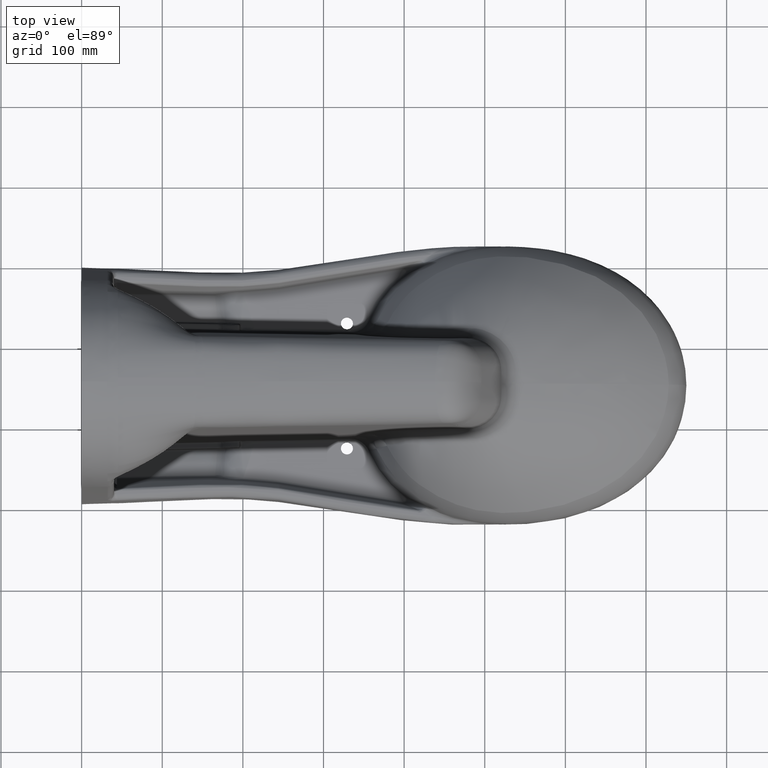
[diagram: clean part render]
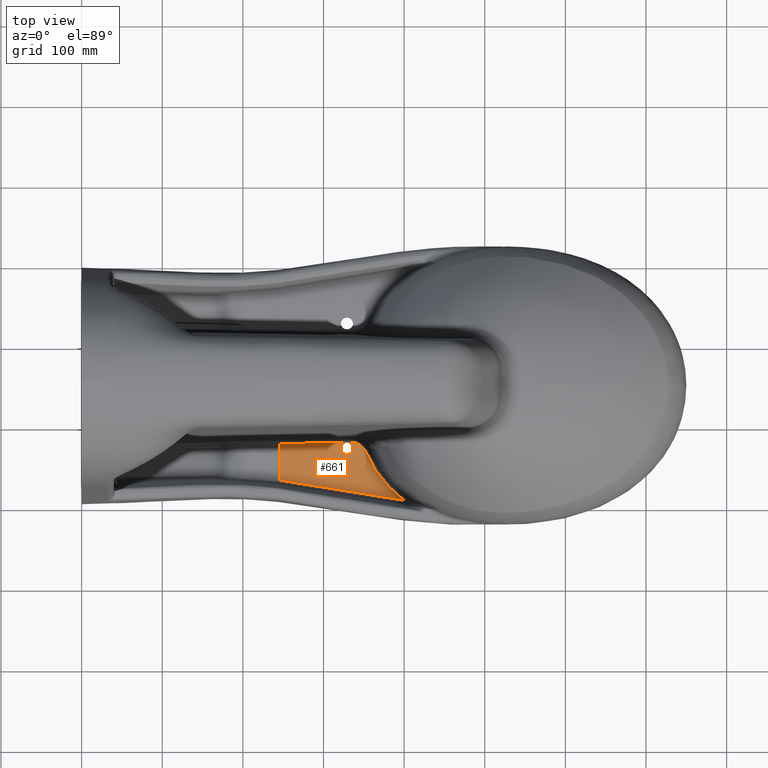
[diagram: same view with one face highlighted and labeled with its STEP entity id]
A machine part, top view. The second image highlights one B-rep face of the part: STEP entity #661.
In plain terms, the highlighted planar face has unit normal (0, 0, -1).
Its self-contained STEP definition (entity closure, byte-faithful):
#66=CIRCLE('',#6532,7.5);
#591=PLANE('',#6533);
#661=ADVANCED_FACE('',(#1244),#591,.F.);
#1244=FACE_OUTER_BOUND('',#1667,.T.);
#1667=EDGE_LOOP('',(#2306,#2307,#2308,#2309,#2310,#2311,#2312));
#2306=ORIENTED_EDGE('',*,*,#4903,.F.);
#2307=ORIENTED_EDGE('',*,*,#4902,.T.);
#2308=ORIENTED_EDGE('',*,*,#4904,.F.);
#2309=ORIENTED_EDGE('',*,*,#4905,.T.);
#2310=ORIENTED_EDGE('',*,*,#4906,.T.);
#2311=ORIENTED_EDGE('',*,*,#4907,.T.);
#2312=ORIENTED_EDGE('',*,*,#4898,.T.);
#4253=VERTEX_POINT('',#9554);
#4254=VERTEX_POINT('',#9555);
#4255=VERTEX_POINT('',#9560);
#4258=VERTEX_POINT('',#9578);
#4259=VERTEX_POINT('',#9600);
#4260=VERTEX_POINT('',#9674);
#4261=VERTEX_POINT('',#9685);
#4898=EDGE_CURVE('',#4255,#4253,#5903,.T.);
#4902=EDGE_CURVE('',#4254,#4258,#5906,.T.);
#4903=EDGE_CURVE('',#4254,#4253,#66,.T.);
#4904=EDGE_CURVE('',#4259,#4258,#5907,.T.);
#4905=EDGE_CURVE('',#4259,#4260,#5908,.T.);
#4906=EDGE_CURVE('',#4260,#4261,#5909,.T.);
#4907=EDGE_CURVE('',#4261,#4255,#5910,.T.);
#5903=B_SPLINE_CURVE_WITH_KNOTS('',3,(#9556,#9557,#9558,#9559),
 .UNSPECIFIED.,.F.,.F.,(4,4),(0.,1.),.UNSPECIFIED.);
#5906=B_SPLINE_CURVE_WITH_KNOTS('',3,(#9579,#9580,#9581,#9582),
 .UNSPECIFIED.,.F.,.F.,(4,4),(0.,1.),.UNSPECIFIED.);
#5907=B_SPLINE_CURVE_WITH_KNOTS('',3,(#9596,#9597,#9598,#9599),
 .UNSPECIFIED.,.F.,.F.,(4,4),(0.,1.),.UNSPECIFIED.);
#5908=B_SPLINE_CURVE_WITH_KNOTS('',3,(#9601,#9602,#9603,#9604,#9605,#9606,
#9607,#9608,#9609,#9610,#9611,#9612,#9613,#9614,#9615,#9616,#9617,#9618,
#9619,#9620,#9621,#9622,#9623,#9624,#9625,#9626,#9627,#9628,#9629,#9630,
#9631,#9632,#9633,#9634,#9635,#9636,#9637,#9638,#9639,#9640,#9641,#9642,
#9643,#9644,#9645,#9646,#9647,#9648,#9649,#9650,#9651,#9652,#9653,#9654,
#9655,#9656,#9657,#9658,#9659,#9660,#9661,#9662,#9663,#9664,#9665,#9666,
#9667,#9668,#9669,#9670,#9671,#9672,#9673),.UNSPECIFIED.,.F.,.F.,(4,1,1,
1,2,2,1,1,1,1,2,2,1,1,1,2,2,1,1,1,1,1,2,2,1,1,1,1,2,2,1,1,1,1,2,2,1,1,1,
2,2,1,1,1,1,2,2,1,1,1,2,2,4),(0.,0.0625000000000513,0.0937500000000774,
0.109375000000091,0.117187500000097,0.125000000000104,0.187500000000156,
0.218750000000182,0.234375000000196,0.242187500000203,0.246093750000206,
0.250000000000209,0.312500000000261,0.343750000000288,0.359375000000302,
0.367187500000309,0.375000000000316,0.406250000000344,0.421875000000359,
0.429687500000366,0.433593750000369,0.43554687500037,0.436523437500371,
0.437500000000371,0.46875000000036,0.484375000000354,0.492187500000351,
0.49609375000035,0.49804687500035,0.50000000000035,0.53125000000034,0.546875000000336,
0.554687500000334,0.558593750000333,0.560546875000332,0.562500000000331,
0.593750000000314,0.609375000000305,0.6171875000003,0.621093750000298,0.625000000000295,
0.687500000000245,0.718750000000219,0.734375000000206,0.7421875000002,0.746093750000196,
0.750000000000193,0.812500000000148,0.843750000000125,0.859375000000114,
0.867187500000108,0.875000000000102,1.),.UNSPECIFIED.);
#5909=B_SPLINE_CURVE_WITH_KNOTS('',3,(#9675,#9676,#9677,#9678,#9679,#9680,
#9681,#9682,#9683,#9684),.UNSPECIFIED.,.F.,.F.,(4,2,2,2,4),(0.,0.25,0.5,
0.75,1.),.UNSPECIFIED.);
#5910=B_SPLINE_CURVE_WITH_KNOTS('',3,(#9686,#9687,#9688,#9689,#9690,#9691),
 .UNSPECIFIED.,.F.,.F.,(4,2,4),(0.,0.5,1.),.UNSPECIFIED.);
#6532=AXIS2_PLACEMENT_3D('',#9595,#6729,#6730);
#6533=AXIS2_PLACEMENT_3D('',#9692,#6731,#6732);
#6729=DIRECTION('',(0.,0.,1.));
#6730=DIRECTION('',(-1.,0.,0.));
#6731=DIRECTION('',(0.,0.,-1.));
#6732=DIRECTION('',(0.902094349400398,-0.431538856628082,0.));
#9554=CARTESIAN_POINT('',(329.354457079319,83.5113082503892,18.6204300432254));
#9555=CARTESIAN_POINT('',(328.489589753216,83.4952131403827,18.6204300432254));
#9556=CARTESIAN_POINT('',(333.142226359888,83.5817983844666,18.6204300432254));
#9557=CARTESIAN_POINT('',(331.879636600024,83.5583016555874,18.6204300432254));
#9558=CARTESIAN_POINT('',(330.617046839812,83.5348049454292,18.6204300432254));
#9559=CARTESIAN_POINT('',(329.354457079319,83.5113082503893,18.6204300432254));
#9560=CARTESIAN_POINT('',(333.142226359888,83.5817983844671,18.6204300432254));
#9578=CARTESIAN_POINT('',(244.999999954857,81.9415813431216,18.6204300439005));
#9579=CARTESIAN_POINT('',(328.489589753216,83.4952131403827,18.6204300432254));
#9580=CARTESIAN_POINT('',(300.659727122223,82.9773017463105,18.6204300432254));
#9581=CARTESIAN_POINT('',(272.829864505084,82.4593896077406,18.6204300432254));
#9582=CARTESIAN_POINT('',(245.000001888734,81.9414774267911,18.6204300432254));
#9595=CARTESIAN_POINT('',(329.06134140244,76.0170382258993,18.6204300432254));
#9596=CARTESIAN_POINT('',(244.999999957259,36.7727909913723,18.6204300432254));
#9597=CARTESIAN_POINT('',(244.999999957258,51.8290890927386,18.6204300432254));
#9598=CARTESIAN_POINT('',(244.999999957258,66.8853871941053,18.6204300432254));
#9599=CARTESIAN_POINT('',(244.999999957258,81.9416852954724,18.6204300432254));
#9600=CARTESIAN_POINT('',(244.999999954861,36.772279874638,18.6204300592672));
#9601=CARTESIAN_POINT('',(244.999999953521,36.7717687586188,18.6204300432254));
#9602=CARTESIAN_POINT('',(248.095462979014,36.3586494303917,18.6204300432254));
#9603=CARTESIAN_POINT('',(252.84573585817,35.7012639639461,18.6204300432254));
#9604=CARTESIAN_POINT('',(258.575107980458,34.8683279234097,18.6204300432254));
#9605=CARTESIAN_POINT('',(261.486640815754,34.4353633207206,18.6204300432254));
#9606=CARTESIAN_POINT('',(262.74447919677,34.2462720804779,18.6204300432254));
#9607=CARTESIAN_POINT('',(263.585268916216,34.1194257021056,18.6204300432254));
#9608=CARTESIAN_POINT('',(264.050427820112,34.0489782786451,18.6204300432254));
#9609=CARTESIAN_POINT('',(267.461220943458,33.5307827385972,18.6204300432254));
#9610=CARTESIAN_POINT('',(272.157941456061,32.7998600960925,18.6204300432254));
#9611=CARTESIAN_POINT('',(277.89819233001,31.8771253155656,18.6204300432254));
#9612=CARTESIAN_POINT('',(280.833503669297,31.3982600009009,18.6204300432254));
#9613=CARTESIAN_POINT('',(282.317455814518,31.1544528624683,18.6204300432254));
#9614=CARTESIAN_POINT('',(282.956927407236,31.0490267000471,18.6204300432254));
#9615=CARTESIAN_POINT('',(283.384017825029,30.9785342831425,18.6204300432254));
#9616=CARTESIAN_POINT('',(283.630717811838,30.9377634126795,18.6204300432254));
#9617=CARTESIAN_POINT('',(286.71714371604,30.4271852532639,18.6204300432254));
#9618=CARTESIAN_POINT('',(291.314580873877,29.6553861797947,18.6204300432254));
#9619=CARTESIAN_POINT('',(297.098485056205,28.6657339426931,18.6204300432254));
#9620=CARTESIAN_POINT('',(300.095494021916,28.1486028279621,18.6204300432254));
#9621=CARTESIAN_POINT('',(301.402438623194,27.9221955653245,18.6204300432254));
#9622=CARTESIAN_POINT('',(302.278737732358,27.7701952475575,18.6204300432254));
#9623=CARTESIAN_POINT('',(302.751057787845,27.6881568868505,18.6204300432254));
#9624=CARTESIAN_POINT('',(304.80847336857,27.3303810314861,18.6204300432254));
#9625=CARTESIAN_POINT('',(307.443525617086,26.8701296784188,18.6204300432254));
#9626=CARTESIAN_POINT('',(310.808521955736,26.2790591949044,18.6204300432254));
#9627=CARTESIAN_POINT('',(312.563712303906,25.9699963102467,18.6204300432254));
#9628=CARTESIAN_POINT('',(313.459480522703,25.8120829571927,18.6204300432254));
#9629=CARTESIAN_POINT('',(313.911907893279,25.7322808029844,18.6204300432254));
#9630=CARTESIAN_POINT('',(314.106778893778,25.6978987059633,18.6204300432254));
#9631=CARTESIAN_POINT('',(314.236909239881,25.6749370471074,18.6204300432254));
#9632=CARTESIAN_POINT('',(314.331597090791,25.6582272734593,18.6204300432254));
#9633=CARTESIAN_POINT('',(315.5119085478,25.4499221499231,18.6204300432254));
#9634=CARTESIAN_POINT('',(317.386165038768,25.1186713760839,18.6204300432254));
#9635=CARTESIAN_POINT('',(319.848317307461,24.6827545092662,18.6204300432254));
#9636=CARTESIAN_POINT('',(321.148273365783,24.4524316681895,18.6204300432254));
#9637=CARTESIAN_POINT('',(321.815471375937,24.3341791457341,18.6204300432254));
#9638=CARTESIAN_POINT('',(322.105103376216,24.282837114271,18.6204300432254));
#9639=CARTESIAN_POINT('',(322.299011375497,24.2484618979662,18.6204300432254));
#9640=CARTESIAN_POINT('',(322.359288030538,24.2377760785582,18.6204300432254));
#9641=CARTESIAN_POINT('',(324.651930859541,23.831302850413,18.6204300432254));
#9642=CARTESIAN_POINT('',(327.478260482029,23.330498420192,18.6204300432254));
#9643=CARTESIAN_POINT('',(330.057545479882,22.874046807465,18.6204300432254));
#9644=CARTESIAN_POINT('',(331.167663088381,22.6777760567343,18.6204300432254));
#9645=CARTESIAN_POINT('',(331.677840670023,22.5876294452771,18.6204300432254));
#9646=CARTESIAN_POINT('',(331.886870800168,22.5507070612043,18.6204300432254));
#9647=CARTESIAN_POINT('',(332.024087019188,22.5264725558181,18.6204300432254));
#9648=CARTESIAN_POINT('',(332.046176070437,22.5225707449643,18.6204300432254));
#9649=CARTESIAN_POINT('',(333.948839295096,22.1866155798025,18.6204300432254));
#9650=CARTESIAN_POINT('',(336.500183164244,21.737302001663,18.6204300432254));
#9651=CARTESIAN_POINT('',(339.240905404022,21.2568109440575,18.6204300432254));
#9652=CARTESIAN_POINT('',(340.552305122021,21.0274924444773,18.6204300432254));
#9653=CARTESIAN_POINT('',(341.101698986472,20.9315545937764,18.6204300432254));
#9654=CARTESIAN_POINT('',(341.465153876969,20.8681163613674,18.6204300432254));
#9655=CARTESIAN_POINT('',(341.600535189473,20.8444941360058,18.6204300432254));
#9656=CARTESIAN_POINT('',(345.406190027332,20.1808905516825,18.6204300432254));
#9657=CARTESIAN_POINT('',(350.511049731522,19.3002091029608,18.6204300432254));
#9658=CARTESIAN_POINT('',(355.998017798737,18.3710460858505,18.6204300432254));
#9659=CARTESIAN_POINT('',(358.624326435427,17.9310392455616,18.6204300432254));
#9660=CARTESIAN_POINT('',(359.908186904542,17.7171794924838,18.6204300432254));
#9661=CARTESIAN_POINT('',(360.452135566471,17.6268418126789,18.6204300432254));
#9662=CARTESIAN_POINT('',(360.813373062555,17.5669092483836,18.6204300432254));
#9663=CARTESIAN_POINT('',(360.957361386104,17.5430385909992,18.6204300432254));
#9664=CARTESIAN_POINT('',(364.615026216575,16.937446340668,18.6204300432254));
#9665=CARTESIAN_POINT('',(369.619773036046,16.1253934560034,18.6204300432254));
#9666=CARTESIAN_POINT('',(375.180367560689,15.2530749647849,18.6204300432254));
#9667=CARTESIAN_POINT('',(377.891095631826,14.8356848543982,18.6204300432254));
#9668=CARTESIAN_POINT('',(379.037928549917,14.6608253360659,18.6204300432254));
#9669=CARTESIAN_POINT('',(379.799171010016,14.5451460921883,18.6204300432254));
#9670=CARTESIAN_POINT('',(380.131882987314,14.4947341361136,18.6204300432254));
#9671=CARTESIAN_POINT('',(387.332424319921,13.4079813362346,18.6204300432254));
#9672=CARTESIAN_POINT('',(393.810645474806,12.4932806805757,18.6204300432254));
#9673=CARTESIAN_POINT('',(399.990107706826,11.6867055338499,18.6204300432254));
#9674=CARTESIAN_POINT('',(399.990107706689,11.686705532802,18.6204300432254));
#9675=CARTESIAN_POINT('',(399.990107706689,11.686705532802,18.6204300432254));
#9676=CARTESIAN_POINT('',(394.872799082187,15.5672489833865,18.6204300432254));
#9677=CARTESIAN_POINT('',(389.978174482474,19.6953104081982,18.6204300432254));
#9678=CARTESIAN_POINT('',(380.710854344299,28.53156838001,18.6204300432254));
#9679=CARTESIAN_POINT('',(376.32113006332,33.2635324458254,18.6204300432254));
#9680=CARTESIAN_POINT('',(368.352872098006,43.1840902201151,18.6204300432254));
#9681=CARTESIAN_POINT('',(364.759185481737,48.395255946474,18.6204300432254));
#9682=CARTESIAN_POINT('',(358.336912089099,59.3092181673668,18.6204300432254));
#9683=CARTESIAN_POINT('',(355.517185548402,65.0177079900692,18.6204300432254));
#9684=CARTESIAN_POINT('',(352.981737872267,70.90886709235,18.6204300432254));
#9685=CARTESIAN_POINT('',(352.981737872267,70.90886709235,18.6204300432254));
#9686=CARTESIAN_POINT('',(352.981737872267,70.90886709235,18.6204300432254));
#9687=CARTESIAN_POINT('',(351.321731885615,74.7659213988339,18.6204300432254));
#9688=CARTESIAN_POINT('',(348.484636699454,78.0527232332986,18.6204300432254));
#9689=CARTESIAN_POINT('',(341.475954486167,82.4988204379924,18.6204300432254));
#9690=CARTESIAN_POINT('',(337.339075605494,83.6599015277064,18.6204300432255));
#9691=CARTESIAN_POINT('',(333.142226359887,83.5817983844641,18.6204300432255));
#9692=CARTESIAN_POINT('',(260.297463351988,163.513621460095,18.6204300432254));